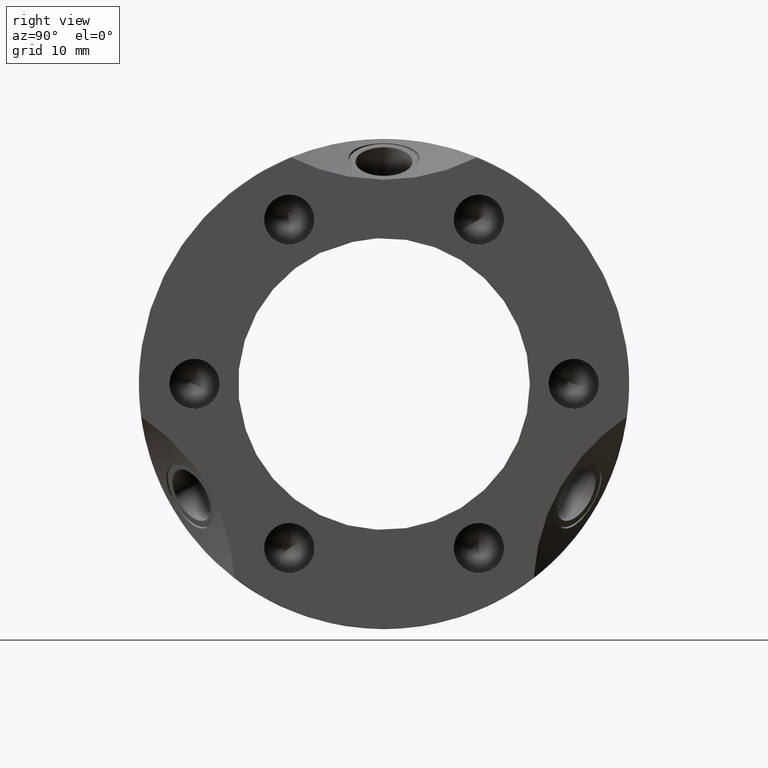
[diagram: clean part render]
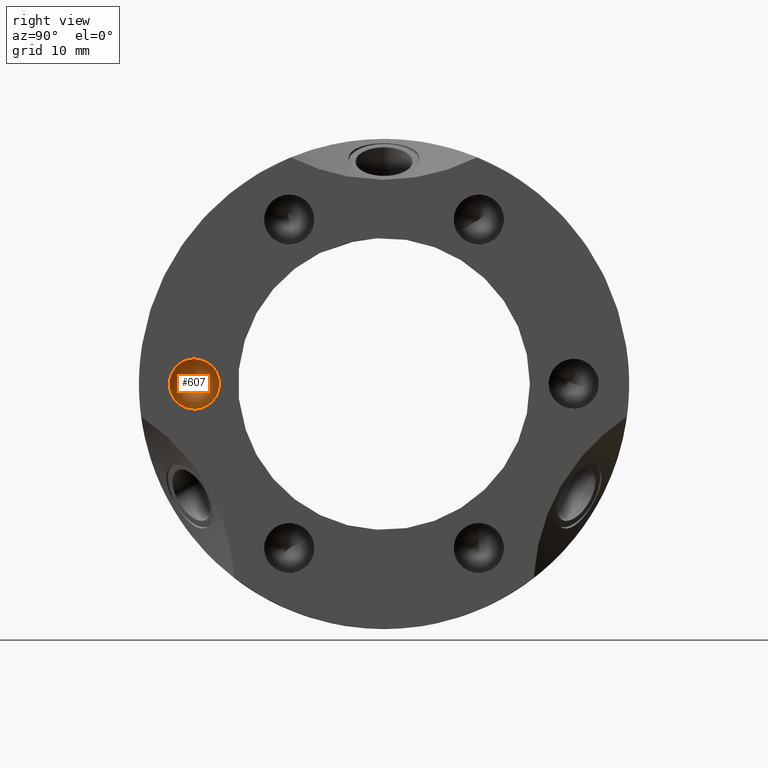
[diagram: same view with one face highlighted and labeled with its STEP entity id]
A machine part, right view. The second image highlights one B-rep face of the part: STEP entity #607.
In plain terms, the highlighted conical surface has half-angle 59 deg.
Its self-contained STEP definition (entity closure, byte-faithful):
#591=CARTESIAN_POINT('',(13.854074834545367,-16.250000000000004,-4.440892E-015));
#592=DIRECTION('',(1.0,0.0,0.0));
#593=DIRECTION('',(0.0,0.866025403784439,-0.5));
#594=AXIS2_PLACEMENT_3D('',#591,#592,#593);
#595=CONICAL_SURFACE('',#594,1.075,59.000000000000021);
#596=CARTESIAN_POINT('',(14.499999999999995,-14.38804538186346,-1.075000000000005));
#597=VERTEX_POINT('',#596);
#598=CARTESIAN_POINT('',(14.499999999999995,-16.250000000000004,-4.440892E-015));
#599=DIRECTION('',(1.0,0.0,0.0));
#600=DIRECTION('',(0.0,0.866025403784439,-0.5));
#601=AXIS2_PLACEMENT_3D('',#598,#599,#600);
#602=CIRCLE('',#601,2.15);
#603=EDGE_CURVE('',#597,#597,#602,.T.);
#604=ORIENTED_EDGE('',*,*,#603,.T.);
#605=EDGE_LOOP('',(#604));
#606=FACE_OUTER_BOUND('',#605,.T.);
#607=ADVANCED_FACE('',(#606),#595,.F.);